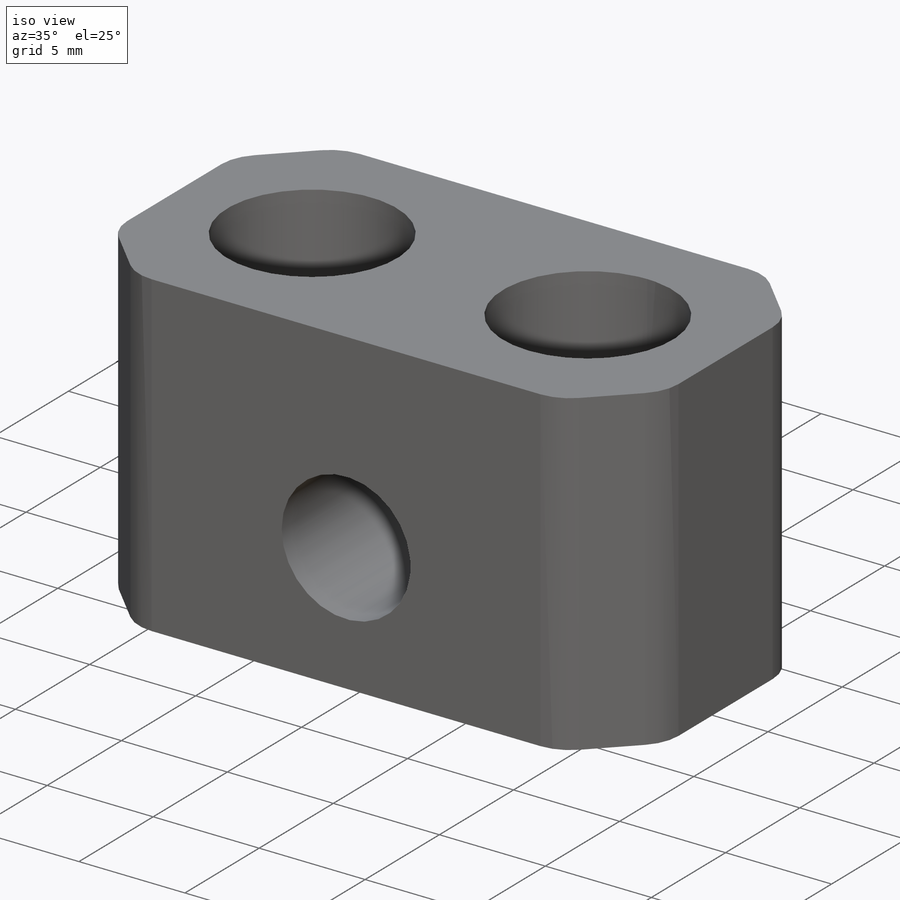
[diagram: iso view]
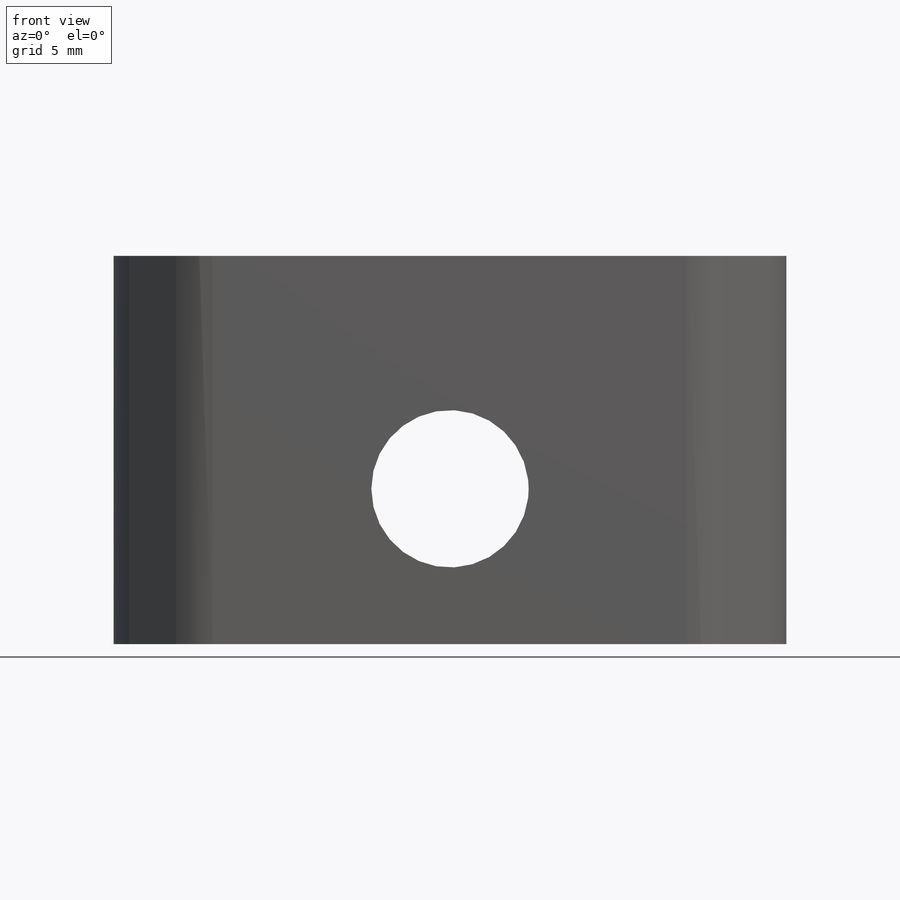
[diagram: front view]
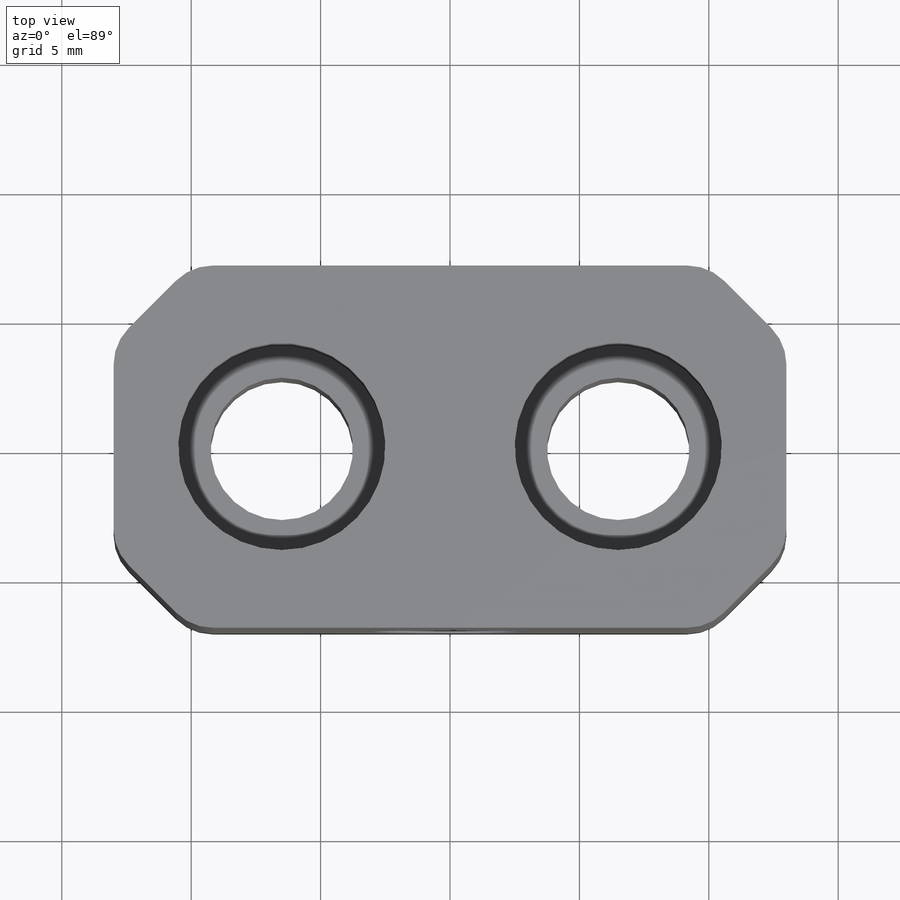
[diagram: top view]
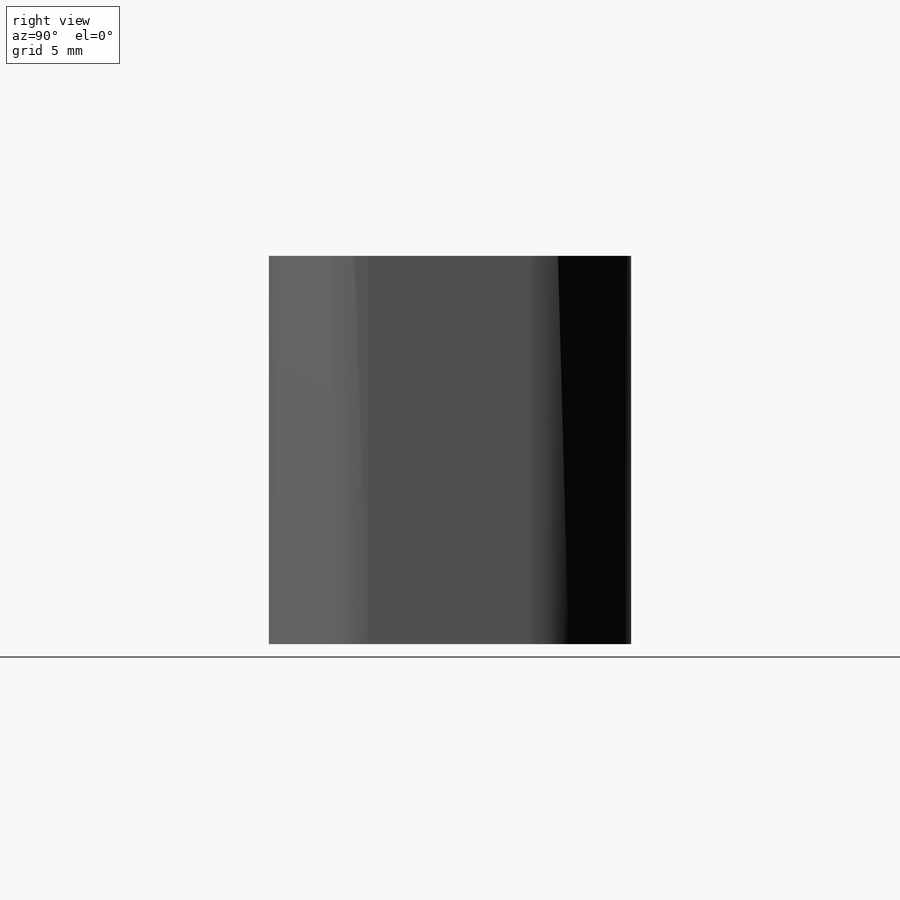
[diagram: right view]
SOLIDWORKS PART (.sldprt)
format: sldprt  version: not decoded by parser v0  size: 231,424 bytes
history: native  units: mm
features: sketch x5, cut_extrude x4, material x1, extrude x1, chamfer x1, fillet x1 (+12 scaffold rows collapsed)
feature tree (25):
  scaffold x12  (default folders/planes/origin — collapsed)
  material  "Material <not specified>"
  sketch  "Sketch1"  dims[D1=26.0mm D2=15.0mm]
  extrude  "Boss-Extrude1"  Depth=7mm
  sketch  "Sketch3"  dims[D1=6.08mm D2=6.0mm]
  cut_extrude  "Cut-Extrude1"  Depth=7mm
  sketch  "Sketch4"  dims[D1=8.0mm]
  cut_extrude  "Cut-Extrude2"  Depth=5mm
  chamfer  "Chamfer1"  Distance=3mm Angle=45deg
  fillet  "Fillet1"  Radius=2mm
  sketch  "Esquisse1"  dims[D1=5.5mm]
  cut_extrude  "Enlèv. mat.-Extru.1"  Depth=10mm
  sketch  "Esquisse2"  dims[D1=5.5mm]
  cut_extrude  "Enlèv. mat.-Extru.2"  Depth=10mm
decode coverage: 12 of 12 modeling features carry decoded parameters
note: suppression state not decoded; provenance and decode notes live in map.json
